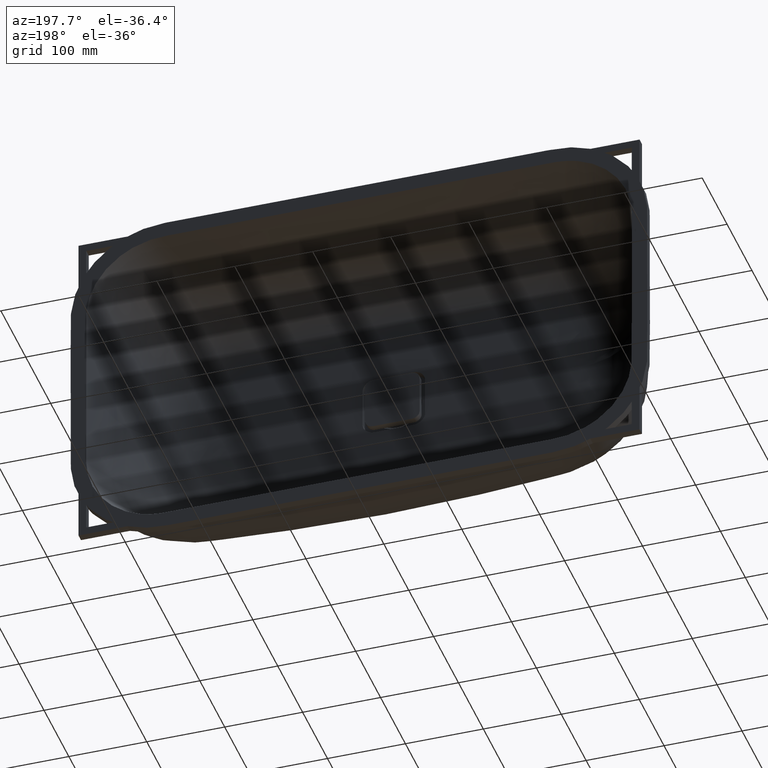
[diagram: clean part render]
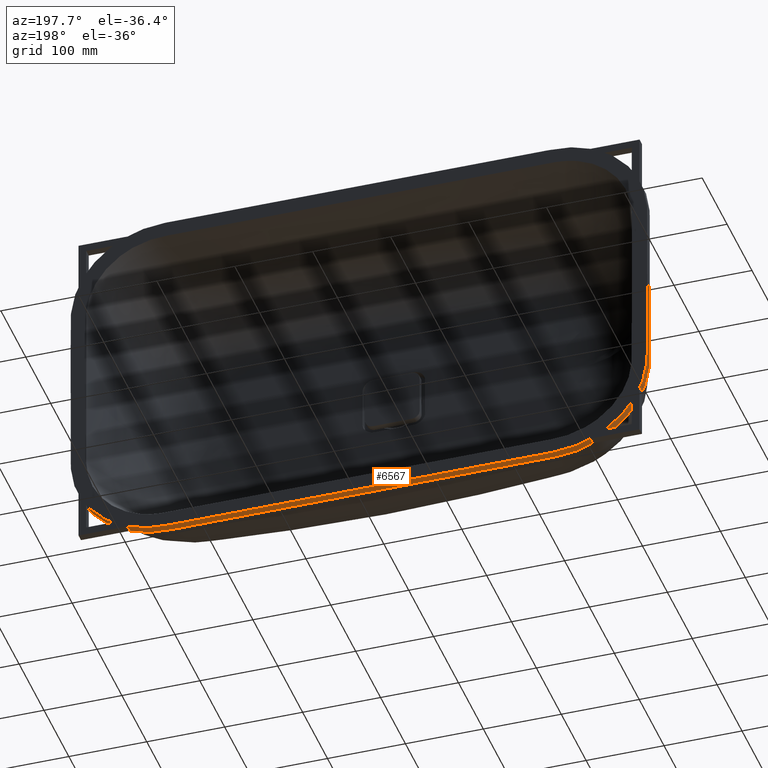
[diagram: same view with one face highlighted and labeled with its STEP entity id]
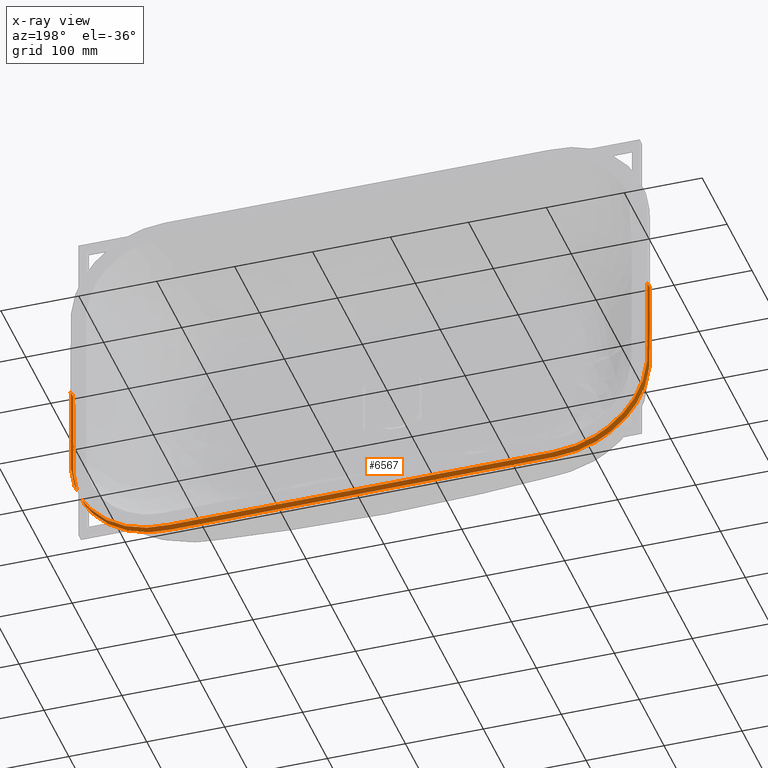
[diagram: x-ray of the same camera — body ghosted, the highlighted face saturated]
A machine part, auxiliary view. The second image highlights one B-rep face of the part: STEP entity #6567.
The next image is the same camera in x-ray: the body ghosted, the highlighted face saturated — about 0% of this face is hidden behind the body in this view.
In plain terms, the highlighted face is a freeform B-spline surface patch.
Its self-contained STEP definition (entity closure, byte-faithful):
#1291 = CARTESIAN_POINT ( 'NONE',  ( -368.5694265312981800, -10.00000000000004100, -128.6755109102220400 ) ) ;
#1517 = CARTESIAN_POINT ( 'NONE',  ( -208.1909280709333500, -7.285838599102589800E-014, -229.9999998948312300 ) ) ;
#1802 = VERTEX_POINT ( 'NONE', #77585 ) ;
#1940 = CARTESIAN_POINT ( 'NONE',  ( -301.3375124675763500, -6.903844104798725300E-014, -218.7966092659687500 ) ) ;
#2067 = CARTESIAN_POINT ( 'NONE',  ( -227.1174660438715600, -10.00000000000007300, -229.9999993046552900 ) ) ;
#2108 = CARTESIAN_POINT ( 'NONE',  ( -370.0000000051377400, -10.00000000000001600, -48.66800487696790600 ) ) ;
#2209 = CARTESIAN_POINT ( 'NONE',  ( -369.9837355351533600, -3.541286203545981500E-014, -112.2304330767916700 ) ) ;
#2477 = CARTESIAN_POINT ( 'NONE',  ( -369.9999999808322300, -2.047541364857557800E-014, -64.89067556598723700 ) ) ;
#2603 = CARTESIAN_POINT ( 'NONE',  ( 227.1174660438736100, -7.285838599102589800E-014, -229.9999993046553200 ) ) ;
#2882 = CARTESIAN_POINT ( 'NONE',  ( 248.4051379303418800, -7.285838599102589800E-014, -230.0000288654555000 ) ) ;
#3075 = CARTESIAN_POINT ( 'NONE',  ( 369.9999973128920500, -10.00000000000003400, -103.4197589538119100 ) ) ;
#3160 = CARTESIAN_POINT ( 'NONE',  ( 219.0059958477482700, -7.285838599102589800E-014, -230.0000001821698300 ) ) ;
#3237 = CARTESIAN_POINT ( 'NONE',  ( 249.2680254088382100, -7.285838599102589800E-014, -229.9999129777619400 ) ) ;
#3354 = CARTESIAN_POINT ( 'NONE',  ( 365.5811764428864300, -10.00000000000004600, -142.7334832046046800 ) ) ;
#3437 = CARTESIAN_POINT ( 'NONE',  ( 194.6720158728535400, -10.00000000000007300, -230.0000000356706700 ) ) ;
#3517 = CARTESIAN_POINT ( 'NONE',  ( 369.9998421130367200, -3.469446951953614200E-014, -109.3485733155321100 ) ) ;
#3636 = CARTESIAN_POINT ( 'NONE',  ( 257.3966411606836000, -10.00000000000007300, -229.7905751632785000 ) ) ;
#3711 = CARTESIAN_POINT ( 'NONE',  ( 369.9999999999998900, 1.698670210949542000E-028, 5.754945131553057500E-013 ) ) ;
#3723 = CARTESIAN_POINT ( 'NONE',  ( 248.4051379303418800, -10.00000000000007300, -230.0000288654555000 ) ) ;
#3809 = CARTESIAN_POINT ( 'NONE',  ( 370.0000523813992600, -10.00000000000003600, -108.4842689358019800 ) ) ;
#3929 = CARTESIAN_POINT ( 'NONE',  ( 208.1909280709354800, -10.00000000000007300, -229.9999998948313200 ) ) ;
#4010 = CARTESIAN_POINT ( 'NONE',  ( 241.3132199435013400, -7.285838599102589800E-014, -229.9999933736824300 ) ) ;
#4097 = CARTESIAN_POINT ( 'NONE',  ( 370.0000000051375700, -10.00000000000001600, -48.66800487696705300 ) ) ;
#4211 = CARTESIAN_POINT ( 'NONE',  ( -156.8191275139739400, -10.00000000000007300, -230.0000000053955500 ) ) ;
#4288 = CARTESIAN_POINT ( 'NONE',  ( 219.0059958477482700, -10.00000000000007300, -230.0000001821698300 ) ) ;
#4305 = FACE_OUTER_BOUND ( 'NONE', #45583, .T. ) ;
#4374 = CARTESIAN_POINT ( 'NONE',  ( 370.0002737202537400, -10.00000000000003600, -109.9847503573792300 ) ) ;
#4489 = CARTESIAN_POINT ( 'NONE',  ( -250.7332074480156300, -10.00000000000007300, -229.9991818206130700 ) ) ;
#4619 = CARTESIAN_POINT ( 'NONE',  ( 370.0000000051375700, -1.535655966924644800E-014, -48.66800487696705300 ) ) ;
#4654 = CARTESIAN_POINT ( 'NONE',  ( 369.9985107857468700, -10.00000000000003600, -110.8386633332168900 ) ) ;
#4771 = CARTESIAN_POINT ( 'NONE',  ( -353.0913786025862500, -10.00000000000005300, -171.9959201989187800 ) ) ;
#4899 = CARTESIAN_POINT ( 'NONE',  ( 369.9985107857468700, -3.497370708823961100E-014, -110.8386633332168900 ) ) ;
#5051 = CARTESIAN_POINT ( 'NONE',  ( -370.0000523813992000, -10.00000000000003600, -108.4842689358032900 ) ) ;
#5182 = CARTESIAN_POINT ( 'NONE',  ( 315.4333475073850700, -6.663998841689067000E-014, -211.1954338164214800 ) ) ;
#5325 = CARTESIAN_POINT ( 'NONE',  ( -370.0000000000000600, -10.00000000000000200, -5.407556139488238300 ) ) ;
#5450 = CARTESIAN_POINT ( 'NONE',  ( 248.4051379303418800, -7.257353524414461300E-014, -230.0000288654555000 ) ) ;
#5540 = CARTESIAN_POINT ( 'NONE',  ( -241.3132199434992300, -7.285838599102589800E-014, -229.9999933736824900 ) ) ;
#5725 = CARTESIAN_POINT ( 'NONE',  ( 64.89067382028906600, -7.257352613598166800E-014, -229.9999999998679200 ) ) ;
#6011 = CARTESIAN_POINT ( 'NONE',  ( -235.2282897767607000, -7.257352695617029800E-014, -230.0000025992095500 ) ) ;
#6109 = CARTESIAN_POINT ( 'NONE',  ( -367.4470581483514600, -4.336808689942017700E-014, -134.9774096808805600 ) ) ;
#6567 = ADVANCED_FACE ( 'NONE', ( #4305 ), #78062, .T. ) ;
#6988 = CARTESIAN_POINT ( 'NONE',  ( -370.0000000000000000, -10.00000000000000000, -3.122502256758252800E-014 ) ) ;
#7425 = CARTESIAN_POINT ( 'NONE',  ( 247.0602996470185200, -7.285838599102589800E-014, -229.9999833621213300 ) ) ;
#7700 = CARTESIAN_POINT ( 'NONE',  ( 208.1909280709354800, -10.00000000000007300, -229.9999998948313200 ) ) ;
#7744 = CARTESIAN_POINT ( 'NONE',  ( -261.4155354305581200, -10.00000000000007300, -229.4878407854313900 ) ) ;
#8017 = CARTESIAN_POINT ( 'NONE',  ( -370.0000000000000000, -10.00000000000000000, -3.122502256758252800E-014 ) ) ;
#8384 = CARTESIAN_POINT ( 'NONE',  ( -330.7752597798499300, -6.293298880005858500E-014, -199.4472116028095700 ) ) ;
#8509 = CARTESIAN_POINT ( 'NONE',  ( 245.3670214626352800, -7.285838599102589800E-014, -230.0000054136311000 ) ) ;
#8606 = EDGE_CURVE ( 'NONE', #57058, #1802, #24869, .T. ) ;
#8655 = CARTESIAN_POINT ( 'NONE',  ( -370.0002737202536900, -3.470426588967556400E-014, -109.9847503573808500 ) ) ;
#8772 = ORIENTED_EDGE ( 'NONE', *, *, #8606, .F. ) ;
#8928 = CARTESIAN_POINT ( 'NONE',  ( -369.9999999986166600, -1.023770658547308900E-014, -32.44533702614214800 ) ) ;
#9330 = CARTESIAN_POINT ( 'NONE',  ( 245.3670214626352800, -10.00000000000007300, -230.0000054136311000 ) ) ;
#9409 = CARTESIAN_POINT ( 'NONE',  ( 370.0002737202537400, -3.469446951953614200E-014, -109.9847503573792300 ) ) ;
#9528 = CARTESIAN_POINT ( 'NONE',  ( 369.9999697595848700, -10.00000000000003400, -107.1399925168115600 ) ) ;
#9691 = CARTESIAN_POINT ( 'NONE',  ( 369.2231796589293300, -10.00000000000004100, -123.9083132636453800 ) ) ;
#9812 = CARTESIAN_POINT ( 'NONE',  ( 358.9368303385662700, -10.00000000000005000, -160.6374205879343400 ) ) ;
#9896 = CARTESIAN_POINT ( 'NONE',  ( -227.1174660438715600, -7.285838599102589800E-014, -229.9999993046552900 ) ) ;
#9983 = CARTESIAN_POINT ( 'NONE',  ( 370.0000523813992600, -3.469446951953614200E-014, -108.4842689358019800 ) ) ;
#10103 = CARTESIAN_POINT ( 'NONE',  ( 252.1423367717200400, -10.00000000000007300, -229.9854392652010800 ) ) ;
#10269 = CARTESIAN_POINT ( 'NONE',  ( 370.0000000003951200, -10.00000000000000500, -16.22266841846388300 ) ) ;
#10383 = CARTESIAN_POINT ( 'NONE',  ( 178.4493543980402700, -10.00000000000007300, -229.9999999906549700 ) ) ;
#10467 = CARTESIAN_POINT ( 'NONE',  ( 241.3132199435013400, -10.00000000000007300, -229.9999933736824300 ) ) ;
#10554 = CARTESIAN_POINT ( 'NONE',  ( 257.3966411606836000, -10.00000000000007300, -229.7905751632785000 ) ) ;
#10667 = CARTESIAN_POINT ( 'NONE',  ( -194.6720158728513800, -10.00000000000007300, -230.0000000356705800 ) ) ;
#10836 = CARTESIAN_POINT ( 'NONE',  ( 358.9368303385662700, -5.030698080332740600E-014, -160.6374205879343400 ) ) ;
#10955 = CARTESIAN_POINT ( 'NONE',  ( -254.1704036494605200, -10.00000000000007300, -229.9357047427392900 ) ) ;
#11088 = CARTESIAN_POINT ( 'NONE',  ( 370.0000000564162400, -2.474112251184421700E-014, -78.40955897690069800 ) ) ;
#11120 = CARTESIAN_POINT ( 'NONE',  ( 370.0000000051375700, -1.561251128379126400E-014, -48.66800487696705300 ) ) ;
#11236 = CARTESIAN_POINT ( 'NONE',  ( -362.6162986912609100, -10.00000000000004800, -151.8170165020855800 ) ) ;
#11353 = CARTESIAN_POINT ( 'NONE',  ( 369.9117756355505500, -3.631236465309494800E-014, -115.0811365367326000 ) ) ;
#11505 = CARTESIAN_POINT ( 'NONE',  ( -370.0000102567383900, -10.00000000000003400, -105.4463998884248800 ) ) ;
#11632 = CARTESIAN_POINT ( 'NONE',  ( 289.4804807030358800, -7.050856827840051200E-014, -223.4557360990965000 ) ) ;
#11909 = CARTESIAN_POINT ( 'NONE',  ( 245.3670214626352800, -7.257352784422465600E-014, -230.0000054136311000 ) ) ;
#11916 = ORIENTED_EDGE ( 'NONE', *, *, #77393, .F. ) ;
#12007 = CARTESIAN_POINT ( 'NONE',  ( -241.3132199434992300, -10.00000000000007300, -229.9999933736824900 ) ) ;
#12195 = CARTESIAN_POINT ( 'NONE',  ( 1.292368989602721300E-012, -7.257352613601743900E-014, -229.9999999999812700 ) ) ;
#12284 = CARTESIAN_POINT ( 'NONE',  ( -369.6864430236646500, -3.816391647148975600E-014, -119.1001921969901200 ) ) ;
#12461 = CARTESIAN_POINT ( 'NONE',  ( -245.3670214626334000, -7.257352784422459200E-014, -230.0000054136309600 ) ) ;
#12659 = ORIENTED_EDGE ( 'NONE', *, *, #24013, .T. ) ;
#12839 = CARTESIAN_POINT ( 'NONE',  ( -369.9999994738987000, -3.122502256758252800E-014, -97.33605917397697700 ) ) ;
#13377 = CARTESIAN_POINT ( 'NONE',  ( -249.2680254088362800, -10.00000000000007300, -229.9999129777618200 ) ) ;
#13659 = VECTOR ( 'NONE', #45424, 1000.000000000000000 ) ;
#14461 = CARTESIAN_POINT ( 'NONE',  ( -315.4333475073833600, -10.00000000000006600, -211.1954338164225900 ) ) ;
#14693 = CARTESIAN_POINT ( 'NONE',  ( 97.33601062392219200, -10.00000000000007300, -230.0000000004915800 ) ) ;
#14734 = CARTESIAN_POINT ( 'NONE',  ( -367.4470581483514600, -10.00000000000004400, -134.9774096808805600 ) ) ;
#14842 = CARTESIAN_POINT ( 'NONE',  ( -353.0913786025862500, -5.427108873845919800E-014, -171.9959201989187800 ) ) ;
#14968 = CARTESIAN_POINT ( 'NONE',  ( -219.0059958477463300, -10.00000000000007300, -230.0000001821698000 ) ) ;
#15110 = CARTESIAN_POINT ( 'NONE',  ( -370.0000523813992000, -3.423080837808653200E-014, -108.4842689358032900 ) ) ;
#15234 = CARTESIAN_POINT ( 'NONE',  ( -208.1909280709333500, -10.00000000000007300, -229.9999998948312300 ) ) ;
#15379 = CARTESIAN_POINT ( 'NONE',  ( -370.0000000000000600, -1.706284420961568400E-015, -5.407556139488241000 ) ) ;
#15554 = VECTOR ( 'NONE', #23734, 1000.000000000000000 ) ;
#15699 = CARTESIAN_POINT ( 'NONE',  ( 370.0000000003951200, -10.00000000000000500, -16.22266841846388300 ) ) ;
#15863 = CARTESIAN_POINT ( 'NONE',  ( 370.0000000003951200, -5.204170427930421300E-015, -16.22266841846388600 ) ) ;
#15983 = CARTESIAN_POINT ( 'NONE',  ( 369.9998421130367200, -10.00000000000003600, -109.3485733155321100 ) ) ;
#16142 = CARTESIAN_POINT ( 'NONE',  ( 369.9999999986165400, -10.00000000000001100, -32.44533702614127400 ) ) ;
#16263 = CARTESIAN_POINT ( 'NONE',  ( 344.0916251262462400, -10.00000000000005900, -185.3011088497730400 ) ) ;
#16430 = CARTESIAN_POINT ( 'NONE',  ( 249.9071089342750200, -7.285838599102589800E-014, -230.0001508669375900 ) ) ;
#16547 = CARTESIAN_POINT ( 'NONE',  ( 249.9071089342750200, -10.00000000000007300, -230.0001508669375900 ) ) ;
#16629 = CARTESIAN_POINT ( 'NONE',  ( -219.0059958477463300, -7.285838599102589800E-014, -230.0000001821698000 ) ) ;
#16716 = CARTESIAN_POINT ( 'NONE',  ( 369.6864430236647100, -10.00000000000003900, -119.1001921969885900 ) ) ;
#16838 = CARTESIAN_POINT ( 'NONE',  ( 129.7813478840299100, -10.00000000000007300, -229.9999999981669700 ) ) ;
#17008 = CARTESIAN_POINT ( 'NONE',  ( 369.9999999986165400, -1.040834085586084300E-014, -32.44533702614127400 ) ) ;
#17121 = CARTESIAN_POINT ( 'NONE',  ( -219.0059958477463300, -10.00000000000007300, -230.0000001821698000 ) ) ;
#17288 = CARTESIAN_POINT ( 'NONE',  ( 370.0000015512931700, -3.122502256758252800E-014, -100.7155903604947400 ) ) ;
#17399 = CARTESIAN_POINT ( 'NONE',  ( -261.4155354305581200, -10.00000000000007300, -229.4878407854313900 ) ) ;
#17525 = CARTESIAN_POINT ( 'NONE',  ( 370.0000001376323600, -2.943340231741225900E-014, -93.28033090629377000 ) ) ;
#17558 = CARTESIAN_POINT ( 'NONE',  ( 370.0000102567382800, -3.295974604355933500E-014, -105.4463998884235600 ) ) ;
#17673 = CARTESIAN_POINT ( 'NONE',  ( -367.4470581483514600, -10.00000000000004400, -134.9774096808805600 ) ) ;
#17800 = CARTESIAN_POINT ( 'NONE',  ( 369.2231796589293300, -3.909766613525973400E-014, -123.9083132636453800 ) ) ;
#17947 = CARTESIAN_POINT ( 'NONE',  ( -370.0000015512933900, -10.00000000000003200, -100.7155903604959900 ) ) ;
#18079 = CARTESIAN_POINT ( 'NONE',  ( 272.5347273984087300, -7.192358536704882800E-014, -227.9402078853939000 ) ) ;
#18171 = CARTESIAN_POINT ( 'NONE',  ( -254.1704036494605200, -7.285838599102589800E-014, -229.9357047427392900 ) ) ;
#18345 = CARTESIAN_POINT ( 'NONE',  ( 235.2282897767625200, -7.257352695617036100E-014, -230.0000025992096700 ) ) ;
#18440 = CARTESIAN_POINT ( 'NONE',  ( -369.9999697595850400, -3.295974604355933500E-014, -107.1399925168129500 ) ) ;
#18621 = CARTESIAN_POINT ( 'NONE',  ( -64.89067382028653700, -7.257352613598166800E-014, -229.9999999998679000 ) ) ;
#18906 = CARTESIAN_POINT ( 'NONE',  ( -248.4051379303399800, -7.257353524414460100E-014, -230.0000288654555300 ) ) ;
#19003 = CARTESIAN_POINT ( 'NONE',  ( -370.0000001376325800, -2.949029909160572100E-014, -93.28033090629502100 ) ) ;
#20084 = CARTESIAN_POINT ( 'NONE',  ( -315.4333475073833600, -6.591949208711867000E-014, -211.1954338164225900 ) ) ;
#20623 = CARTESIAN_POINT ( 'NONE',  ( -245.3670214626334000, -7.285838599102589800E-014, -230.0000054136309600 ) ) ;
#21267 = CARTESIAN_POINT ( 'NONE',  ( -362.6162986912609100, -4.790389658698779200E-014, -151.8170165020855800 ) ) ;
#21528 = CARTESIAN_POINT ( 'NONE',  ( -370.0000102567383900, -3.327224807935725400E-014, -105.4463998884248800 ) ) ;
#21653 = CARTESIAN_POINT ( 'NONE',  ( -178.4493543980380000, -10.00000000000007300, -229.9999999906548000 ) ) ;
#21923 = CARTESIAN_POINT ( 'NONE',  ( -194.6720158728513800, -7.285838599102589800E-014, -230.0000000356705800 ) ) ;
#22123 = CARTESIAN_POINT ( 'NONE',  ( 370.0000000051375700, -10.00000000000001600, -48.66800487696705300 ) ) ;
#22206 = CARTESIAN_POINT ( 'NONE',  ( -178.4493543980380000, -7.285838599102589800E-014, -229.9999999906548000 ) ) ;
#22286 = CARTESIAN_POINT ( 'NONE',  ( 370.0000001376323600, -2.949029909160572100E-014, -93.28033090629377000 ) ) ;
#22406 = CARTESIAN_POINT ( 'NONE',  ( 369.9985107857468700, -10.00000000000003600, -110.8386633332168900 ) ) ;
#22488 = CARTESIAN_POINT ( 'NONE',  ( 129.7813478840299100, -7.285838599102589800E-014, -229.9999999981669700 ) ) ;
#22564 = CARTESIAN_POINT ( 'NONE',  ( 370.0000015512931700, -10.00000000000003200, -100.7155903604947400 ) ) ;
#22688 = CARTESIAN_POINT ( 'NONE',  ( 315.4333475073850700, -10.00000000000006600, -211.1954338164214800 ) ) ;
#22855 = CARTESIAN_POINT ( 'NONE',  ( 362.6162986912615300, -4.857225732735059900E-014, -151.8170165020840700 ) ) ;
#22978 = CARTESIAN_POINT ( 'NONE',  ( 248.4051379303418800, -10.00000000000007300, -230.0000288654555000 ) ) ;
#23063 = CARTESIAN_POINT ( 'NONE',  ( -194.6720158728513800, -10.00000000000007300, -230.0000000356705800 ) ) ;
#23148 = CARTESIAN_POINT ( 'NONE',  ( 369.9999994738987000, -3.122502256758252800E-014, -97.33605917397574100 ) ) ;
#23266 = CARTESIAN_POINT ( 'NONE',  ( 64.89067382028906600, -10.00000000000007300, -229.9999999998679200 ) ) ;
#23344 = CARTESIAN_POINT ( 'NONE',  ( 97.33601062392219200, -7.285838599102589800E-014, -230.0000000004915800 ) ) ;
#23429 = CARTESIAN_POINT ( 'NONE',  ( 369.9999973128920500, -10.00000000000003400, -103.4197589538119100 ) ) ;
#23541 = CARTESIAN_POINT ( 'NONE',  ( -235.2282897767607000, -10.00000000000007300, -230.0000025992095500 ) ) ;
#23622 = CARTESIAN_POINT ( 'NONE',  ( 129.7813478840299100, -10.00000000000007300, -229.9999999981669700 ) ) ;
#23676 = CARTESIAN_POINT ( 'NONE',  ( 369.9999999999998900, 1.698670210949542000E-028, 5.754945131553057500E-013 ) ) ;
#23711 = CARTESIAN_POINT ( 'NONE',  ( 369.9999994738987000, -10.00000000000003200, -97.33605917397574100 ) ) ;
#23734 = DIRECTION ( 'NONE',  ( 3.108277162125713300E-032, 1.000000000000000000, -3.155370701566232400E-016 ) ) ;
#23832 = CARTESIAN_POINT ( 'NONE',  ( -272.5347273984065700, -10.00000000000007100, -227.9402078853945000 ) ) ;
#23963 = CARTESIAN_POINT ( 'NONE',  ( 370.0000015512931700, -3.177950230144517000E-014, -100.7155903604947400 ) ) ;
#23996 = CARTESIAN_POINT ( 'NONE',  ( 370.0000102567382800, -10.00000000000003400, -105.4463998884235600 ) ) ;
#24013 = EDGE_CURVE ( 'NONE', #68062, #30836, #81551, .T. ) ;
#24114 = CARTESIAN_POINT ( 'NONE',  ( -369.2231796589290400, -10.00000000000004100, -123.9083132636469600 ) ) ;
#24239 = CARTESIAN_POINT ( 'NONE',  ( 367.4470581483518000, -4.259037638803484200E-014, -134.9774096808791300 ) ) ;
#24384 = CARTESIAN_POINT ( 'NONE',  ( -370.0000001376325800, -10.00000000000003000, -93.28033090629502100 ) ) ;
#24510 = CARTESIAN_POINT ( 'NONE',  ( 261.4155354305604500, -7.241192091800457800E-014, -229.4878407854311000 ) ) ;
#24782 = CARTESIAN_POINT ( 'NONE',  ( 219.0059958477482700, -7.257352619350468600E-014, -230.0000001821698300 ) ) ;
#24869 = B_SPLINE_CURVE_WITH_KNOTS ( 'NONE', 3,
 ( #23676, #36613, #81372, #43074, #4619, #49499, #11088, #55939, #17525, #62368, #23963, #68781, #30421, #75221, #36893, #81646, #43346, #4899, #49777, #11353, #56219, #17800, #62642, #24239, #69061, #30697, #75492, #37170, #81928, #43617, #5182, #50055, #11632, #56491, #18079, #62917, #24510, #69330, #30981, #75764, #37445, #82202, #43896, #5450, #50327, #11909, #56768, #18345, #63193, #24782, #69608, #31255, #76049, #37715, #82478, #44173, #5725, #50599, #12195, #57049, #18621, #63463, #25063, #69883, #31531, #76324, #38000, #82750, #44452, #6011, #50879, #12461, #57327, #18906, #63739, #25336, #70165, #31812, #76604, #26774, #27453, #72261, #33915, #78690, #40388, #1940, #46816, #8384, #53251, #14842, #59678, #21267, #66096, #27722, #72525, #34187, #78962, #40654, #2209, #47092, #8655, #53516, #15110, #59953, #21528, #66365, #28000, #72796, #34457, #79234, #40933, #2477, #47365, #8928, #53790, #15379, #60224 ),
 .UNSPECIFIED., .F., .F.,
 ( 4, 1, 1, 1, 1, 1, 1, 1, 1, 1, 1, 1, 1, 1, 1, 1, 1, 1, 1, 1, 1, 1, 1, 1, 1, 1, 1, 1, 1, 1, 1, 1, 1, 1, 1, 1, 1, 1, 1, 1, 1, 1, 1, 1, 1, 1, 1, 1, 1, 1, 1, 1, 1, 1, 1, 1, 1, 1, 1, 1, 1, 1, 1, 1, 1, 1, 1, 1, 1, 1, 1, 1, 1, 1, 1, 1, 1, 1, 1, 1, 1, 1, 1, 1, 1, 1, 1, 1, 1, 1, 1, 1, 1, 1, 1, 1, 1, 1, 1, 1, 1, 1, 1, 1, 1, 1, 1, 1, 1, 1, 1, 1, 1, 1, 4 ),
 ( 0.5000000000000000000, 0.5078125000000000000, 0.5156250000000000000, 0.5234375000000000000, 0.5312500000000000000, 0.5390625000000000000, 0.5429687500000000000, 0.5449218750000000000, 0.5468750000000000000, 0.5488281250000000000, 0.5498046875000000000, 0.5507812500000000000, 0.5517578125000000000, 0.5522460937500000000, 0.5527343750000000000, 0.5529785156250000000, 0.5532226562500000000, 0.5537109375000000000, 0.5546875000000000000, 0.5566406250000000000, 0.5585937500000000000, 0.5605468750000000000, 0.5625000000000000000, 0.5664062500000000000, 0.5703125000000000000, 0.5742187500000000000, 0.5781250000000000000, 0.5859375000000000000, 0.5937500000000000000, 0.6015625000000000000, 0.6093750000000000000, 0.6132812500000000000, 0.6171875000000000000, 0.6210937500000000000, 0.6230468750000000000, 0.6250000000000000000, 0.6269531250000000000, 0.6279296875000000000, 0.6289062500000000000, 0.6293945312500000000, 0.6296386718750000000, 0.6298828125000000000, 0.6303710937500000000, 0.6308593750000000000, 0.6318359375000000000, 0.6328125000000000000, 0.6367187500000000000, 0.6406250000000000000, 0.6445312500000000000, 0.6484375000000000000, 0.6562500000000000000, 0.6640625000000000000, 0.6718750000000000000, 0.6875000000000000000, 0.7031250000000000000, 0.7187500000000000000, 0.7343750000000000000, 0.7500000000000000000, 0.7656250000000000000, 0.7812500000000000000, 0.7968750000000000000, 0.8125000000000000000, 0.8281250000000000000, 0.8359375000000000000, 0.8437500000000000000, 0.8515625000000000000, 0.8554687500000000000, 0.8593750000000000000, 0.8632812500000000000, 0.8671875000000000000, 0.8681640625000000000, 0.8691406250000000000, 0.8696289062500000000, 0.8701171875000000000, 0.8703613281250000000, 0.8706054687500000000, 0.8710937500000000000, 0.8720703125000000000, 0.8730468750000000000, 0.8750000000000000000, 0.8769531250000000000, 0.8789062500000000000, 0.8828125000000000000, 0.8867187500000000000, 0.8906250000000000000, 0.8984375000000000000, 0.9062500000000000000, 0.9140625000000000000, 0.9218750000000000000, 0.9257812500000000000, 0.9296875000000000000, 0.9335937500000000000, 0.9375000000000000000, 0.9394531250000000000, 0.9414062500000000000, 0.9433593750000000000, 0.9453125000000000000, 0.9462890625000000000, 0.9467773437500000000, 0.9470214843750000000, 0.9472656250000000000, 0.9477539062500000000, 0.9482421875000000000, 0.9492187500000000000, 0.9501953125000000000, 0.9511718750000000000, 0.9531250000000000000, 0.9550781250000000000, 0.9570312500000000000, 0.9609375000000000000, 0.9687500000000000000, 0.9765625000000000000, 0.9843750000000000000, 0.9921875000000000000, 1.000000000000000000 ),
 .UNSPECIFIED. ) ;
#24877 = CARTESIAN_POINT ( 'NONE',  ( -257.3966411606812700, -10.00000000000007300, -229.7905751632785000 ) ) ;
#24950 = CARTESIAN_POINT ( 'NONE',  ( -370.0000000000000000, -10.00000000000000000, -3.122502256758252800E-014 ) ) ;
#25063 = CARTESIAN_POINT ( 'NONE',  ( -129.7813478840275800, -7.257352613544497800E-014, -229.9999999981670300 ) ) ;
#25157 = CARTESIAN_POINT ( 'NONE',  ( -257.3966411606812700, -7.285838599102589800E-014, -229.7905751632785000 ) ) ;
#25336 = CARTESIAN_POINT ( 'NONE',  ( -249.9071089342731400, -7.257357374013480400E-014, -230.0001508669375600 ) ) ;
#25428 = CARTESIAN_POINT ( 'NONE',  ( -369.9999973128921600, -10.00000000000003400, -103.4197589538131600 ) ) ;
#25701 = CARTESIAN_POINT ( 'NONE',  ( -289.4804807030339500, -10.00000000000007100, -223.4557360990971500 ) ) ;
#25980 = CARTESIAN_POINT ( 'NONE',  ( -370.0000000051377400, -1.561251128379126400E-014, -48.66800487696790600 ) ) ;
#26484 = CARTESIAN_POINT ( 'NONE',  ( -156.8191275139739400, -10.00000000000007300, -230.0000000053955500 ) ) ;
#26526 = CARTESIAN_POINT ( 'NONE',  ( -247.0602996470166200, -10.00000000000007300, -229.9999833621212400 ) ) ;
#26762 = CARTESIAN_POINT ( 'NONE',  ( -156.8191275139739400, -7.285838599102589800E-014, -230.0000000053955500 ) ) ;
#26774 = CARTESIAN_POINT ( 'NONE',  ( -257.3966411606812700, -7.250744483662619800E-014, -229.7905751632785000 ) ) ;
#26806 = CARTESIAN_POINT ( 'NONE',  ( -252.1423367717178800, -7.285838599102589800E-014, -229.9854392652011400 ) ) ;
#27039 = CARTESIAN_POINT ( 'NONE',  ( -129.7813478840275800, -10.00000000000007300, -229.9999999981670300 ) ) ;
#27083 = CARTESIAN_POINT ( 'NONE',  ( -369.2231796589290400, -10.00000000000004100, -123.9083132636469600 ) ) ;
#27309 = CARTESIAN_POINT ( 'NONE',  ( -97.33601062391973400, -7.285838599102589800E-014, -230.0000000004914400 ) ) ;
#27453 = CARTESIAN_POINT ( 'NONE',  ( -261.4155354305581200, -7.241192091800464200E-014, -229.4878407854313900 ) ) ;
#27580 = CARTESIAN_POINT ( 'NONE',  ( -64.89067382028653700, -7.285838599102589800E-014, -229.9999999998679000 ) ) ;
#27617 = CARTESIAN_POINT ( 'NONE',  ( -369.9837355351533600, -3.469446951953614200E-014, -112.2304330767916700 ) ) ;
#27722 = CARTESIAN_POINT ( 'NONE',  ( -367.4470581483514600, -4.259037638803527700E-014, -134.9774096808805600 ) ) ;
#27850 = CARTESIAN_POINT ( 'NONE',  ( -129.7813478840275800, -7.285838599102589800E-014, -229.9999999981670300 ) ) ;
#27890 = CARTESIAN_POINT ( 'NONE',  ( -370.0000000003953500, -10.00000000000000500, -16.22266841846452900 ) ) ;
#28000 = CARTESIAN_POINT ( 'NONE',  ( -370.0000015512933900, -3.177950230144553600E-014, -100.7155903604959900 ) ) ;
#28390 = CARTESIAN_POINT ( 'NONE',  ( -235.2282897767607000, -10.00000000000007300, -230.0000025992095500 ) ) ;
#28590 = CARTESIAN_POINT ( 'NONE',  ( 370.0000000564162400, -10.00000000000002500, -78.40955897690069800 ) ) ;
#28672 = CARTESIAN_POINT ( 'NONE',  ( 1.292368989602721300E-012, -7.285838599102589800E-014, -229.9999999999812700 ) ) ;
#28871 = CARTESIAN_POINT ( 'NONE',  ( 369.9117756355505500, -10.00000000000003700, -115.0811365367326000 ) ) ;
#29039 = CARTESIAN_POINT ( 'NONE',  ( 368.5694265312986900, -3.989863994746656300E-014, -128.6755109102204000 ) ) ;
#29159 = CARTESIAN_POINT ( 'NONE',  ( 289.4804807030358800, -10.00000000000007100, -223.4557360990965000 ) ) ;
#29244 = CARTESIAN_POINT ( 'NONE',  ( 178.4493543980402700, -10.00000000000007300, -229.9999999906549700 ) ) ;
#29326 = CARTESIAN_POINT ( 'NONE',  ( 257.3966411606836000, -7.285838599102589800E-014, -229.7905751632785000 ) ) ;
#29445 = CARTESIAN_POINT ( 'NONE',  ( 245.3670214626352800, -10.00000000000007300, -230.0000054136311000 ) ) ;
#29608 = CARTESIAN_POINT ( 'NONE',  ( 368.5694265312986900, -10.00000000000004100, -128.6755109102204000 ) ) ;
#29727 = CARTESIAN_POINT ( 'NONE',  ( 1.292368989602721300E-012, -10.00000000000007300, -229.9999999999812700 ) ) ;
#29897 = CARTESIAN_POINT ( 'NONE',  ( 369.2231796589293300, -3.989863994746656300E-014, -123.9083132636453800 ) ) ;
#30015 = CARTESIAN_POINT ( 'NONE',  ( -245.3670214626334000, -10.00000000000007300, -230.0000054136309600 ) ) ;
#30094 = CARTESIAN_POINT ( 'NONE',  ( -97.33601062391973400, -10.00000000000007300, -230.0000000004914400 ) ) ;
#30183 = CARTESIAN_POINT ( 'NONE',  ( 369.6864430236647100, -3.816391647148975600E-014, -119.1001921969885900 ) ) ;
#30301 = CARTESIAN_POINT ( 'NONE',  ( -289.4804807030339500, -10.00000000000007100, -223.4557360990971500 ) ) ;
#30421 = CARTESIAN_POINT ( 'NONE',  ( 370.0000102567382800, -3.327224807935686300E-014, -105.4463998884235600 ) ) ;
#30567 = CARTESIAN_POINT ( 'NONE',  ( -369.9117756355506100, -10.00000000000003700, -115.0811365367342300 ) ) ;
#30697 = CARTESIAN_POINT ( 'NONE',  ( 362.6162986912615300, -4.790389658698733700E-014, -151.8170165020840700 ) ) ;
#30794 = CARTESIAN_POINT ( 'NONE',  ( -365.5811764428859800, -4.510281037539698400E-014, -142.7334832046062200 ) ) ;
#30836 = VERTEX_POINT ( 'NONE', #24950 ) ;
#30851 = CARTESIAN_POINT ( 'NONE',  ( -370.0000000564165800, -10.00000000000002500, -78.40955897690180600 ) ) ;
#30981 = CARTESIAN_POINT ( 'NONE',  ( 254.1704036494629100, -7.255323859892232300E-014, -229.9357047427392300 ) ) ;
#31075 = CARTESIAN_POINT ( 'NONE',  ( -266.2030324053478700, -7.285838599102589800E-014, -228.9327285942426300 ) ) ;
#31255 = CARTESIAN_POINT ( 'NONE',  ( 194.6720158728535400, -7.257352614727876200E-014, -230.0000000356706700 ) ) ;
#31349 = CARTESIAN_POINT ( 'NONE',  ( -353.0913786025862500, -10.00000000000005300, -171.9959201989187800 ) ) ;
#31531 = CARTESIAN_POINT ( 'NONE',  ( -178.4493543980380000, -7.257352613307458300E-014, -229.9999999906548000 ) ) ;
#31623 = CARTESIAN_POINT ( 'NONE',  ( -272.5347273984065700, -10.00000000000007100, -227.9402078853945000 ) ) ;
#31812 = CARTESIAN_POINT ( 'NONE',  ( -252.1423367717178800, -7.256893168442556300E-014, -229.9854392652011400 ) ) ;
#32459 = CARTESIAN_POINT ( 'NONE',  ( -369.9999999215503400, -10.00000000000002800, -87.87279466569546600 ) ) ;
#32730 = CARTESIAN_POINT ( 'NONE',  ( -369.9999973128921600, -3.295974604355933500E-014, -103.4197589538131600 ) ) ;
#33010 = CARTESIAN_POINT ( 'NONE',  ( -369.9985107857469300, -3.469446951953614200E-014, -110.8386633332185300 ) ) ;
#33236 = CARTESIAN_POINT ( 'NONE',  ( 1.292368989602721300E-012, -10.00000000000007300, -229.9999999999812700 ) ) ;
#33502 = CARTESIAN_POINT ( 'NONE',  ( -32.44533689492683200, -10.00000000000007300, -230.0000000000380300 ) ) ;
#33769 = CARTESIAN_POINT ( 'NONE',  ( -32.44533689492683200, -7.285838599102589800E-014, -230.0000000000380300 ) ) ;
#33915 = CARTESIAN_POINT ( 'NONE',  ( -272.5347273984065700, -7.192358536704899200E-014, -227.9402078853945000 ) ) ;
#34187 = CARTESIAN_POINT ( 'NONE',  ( -369.2231796589290400, -3.909766613526020700E-014, -123.9083132636469600 ) ) ;
#34314 = CARTESIAN_POINT ( 'NONE',  ( 32.44533689492934800, -7.285838599102589800E-014, -230.0000000000380300 ) ) ;
#34457 = CARTESIAN_POINT ( 'NONE',  ( -370.0000001376325800, -2.943340231741263100E-014, -93.28033090629502100 ) ) ;
#34576 = CARTESIAN_POINT ( 'NONE',  ( 247.0602996470185200, -10.00000000000007300, -229.9999833621213300 ) ) ;
#34857 = CARTESIAN_POINT ( 'NONE',  ( -64.89067382028653700, -10.00000000000007300, -229.9999999998679000 ) ) ;
#35063 = CARTESIAN_POINT ( 'NONE',  ( 370.0000001376323600, -10.00000000000003000, -93.28033090629377000 ) ) ;
#35146 = CARTESIAN_POINT ( 'NONE',  ( 32.44533689492934800, -10.00000000000007300, -230.0000000000380300 ) ) ;
#35225 = CARTESIAN_POINT ( 'NONE',  ( 369.9999697595848700, -10.00000000000003400, -107.1399925168115600 ) ) ;
#35347 = CARTESIAN_POINT ( 'NONE',  ( 369.2231796589293300, -10.00000000000004100, -123.9083132636453800 ) ) ;
#35428 = CARTESIAN_POINT ( 'NONE',  ( 64.89067382028906600, -10.00000000000007300, -229.9999999998679200 ) ) ;
#35509 = CARTESIAN_POINT ( 'NONE',  ( 367.4470581483518000, -10.00000000000004400, -134.9774096808791300 ) ) ;
#35627 = CARTESIAN_POINT ( 'NONE',  ( 272.5347273984087300, -10.00000000000007100, -227.9402078853939000 ) ) ;
#35710 = CARTESIAN_POINT ( 'NONE',  ( 156.8191275139761800, -10.00000000000007300, -230.0000000053956900 ) ) ;
#35796 = CARTESIAN_POINT ( 'NONE',  ( 330.7752597798513500, -10.00000000000006200, -199.4472116028083500 ) ) ;
#35917 = CARTESIAN_POINT ( 'NONE',  ( 235.2282897767625200, -10.00000000000007300, -230.0000025992096700 ) ) ;
#36003 = CARTESIAN_POINT ( 'NONE',  ( 64.89067382028906600, -7.285838599102589800E-014, -229.9999999998679200 ) ) ;
#36091 = CARTESIAN_POINT ( 'NONE',  ( 254.1704036494629100, -10.00000000000007300, -229.9357047427392300 ) ) ;
#36213 = CARTESIAN_POINT ( 'NONE',  ( -64.89067382028653700, -10.00000000000007300, -229.9999999998679000 ) ) ;
#36290 = CARTESIAN_POINT ( 'NONE',  ( 156.8191275139761800, -7.285838599102589800E-014, -230.0000000053956900 ) ) ;
#36374 = CARTESIAN_POINT ( 'NONE',  ( 344.0916251262462400, -5.898059818321144100E-014, -185.3011088497730400 ) ) ;
#36484 = CARTESIAN_POINT ( 'NONE',  ( -248.4051379303399800, -10.00000000000007300, -230.0000288654555300 ) ) ;
#36613 = CARTESIAN_POINT ( 'NONE',  ( 369.9999999999998900, -1.706284420961386100E-015, -5.407556139487590000 ) ) ;
#36648 = CARTESIAN_POINT ( 'NONE',  ( 254.1704036494629100, -7.285838599102589800E-014, -229.9357047427392300 ) ) ;
#36766 = CARTESIAN_POINT ( 'NONE',  ( -315.4333475073833600, -10.00000000000006600, -211.1954338164225900 ) ) ;
#36893 = CARTESIAN_POINT ( 'NONE',  ( 370.0000523813992600, -3.423080837808614100E-014, -108.4842689358019800 ) ) ;
#37045 = CARTESIAN_POINT ( 'NONE',  ( -369.9985107857469300, -10.00000000000003600, -110.8386633332185300 ) ) ;
#37170 = CARTESIAN_POINT ( 'NONE',  ( 353.0913786025872100, -5.427108873845876300E-014, -171.9959201989173300 ) ) ;
#37319 = CARTESIAN_POINT ( 'NONE',  ( -370.0000000051377400, -10.00000000000001600, -48.66800487696790600 ) ) ;
#37445 = CARTESIAN_POINT ( 'NONE',  ( 250.7332074480180200, -7.257326797009674900E-014, -229.9991818206131000 ) ) ;
#37537 = CARTESIAN_POINT ( 'NONE',  ( -358.9368303385655300, -10.00000000000005000, -160.6374205879357400 ) ) ;
#37715 = CARTESIAN_POINT ( 'NONE',  ( 156.8191275139761800, -7.257352613772588400E-014, -230.0000000053956900 ) ) ;
#37814 = CARTESIAN_POINT ( 'NONE',  ( -369.2231796589290400, -3.989863994746656300E-014, -123.9083132636469600 ) ) ;
#38000 = CARTESIAN_POINT ( 'NONE',  ( -208.1909280709333500, -7.257352610283869400E-014, -229.9999998948312300 ) ) ;
#38093 = CARTESIAN_POINT ( 'NONE',  ( -369.9999999808322300, -10.00000000000002100, -64.89067556598723700 ) ) ;
#38913 = CARTESIAN_POINT ( 'NONE',  ( -369.9999999215503400, -2.775557561562891400E-014, -87.87279466569546600 ) ) ;
#39189 = CARTESIAN_POINT ( 'NONE',  ( -370.0000000003953500, -5.204170427930421300E-015, -16.22266841846453300 ) ) ;
#39422 = CARTESIAN_POINT ( 'NONE',  ( 235.2282897767625200, -7.285838599102589800E-014, -230.0000025992096700 ) ) ;
#39464 = CARTESIAN_POINT ( 'NONE',  ( -369.9999697595850400, -10.00000000000003400, -107.1399925168129500 ) ) ;
#39689 = CARTESIAN_POINT ( 'NONE',  ( 235.2282897767625200, -10.00000000000007300, -230.0000025992096700 ) ) ;
#39731 = CARTESIAN_POINT ( 'NONE',  ( -370.0000000564165800, -2.428612866367529900E-014, -78.40955897690180600 ) ) ;
#39970 = CARTESIAN_POINT ( 'NONE',  ( 178.4493543980402700, -7.285838599102589800E-014, -229.9999999906549700 ) ) ;
#40012 = CARTESIAN_POINT ( 'NONE',  ( -370.0000000000000600, -10.00000000000000200, -5.407556139488238300 ) ) ;
#40241 = CARTESIAN_POINT ( 'NONE',  ( 208.1909280709354800, -7.285838599102589800E-014, -229.9999998948313200 ) ) ;
#40282 = CARTESIAN_POINT ( 'NONE',  ( -249.9071089342731400, -7.285838599102589800E-014, -230.0001508669375600 ) ) ;
#40388 = CARTESIAN_POINT ( 'NONE',  ( -289.4804807030339500, -7.050856827840068800E-014, -223.4557360990971500 ) ) ;
#40514 = CARTESIAN_POINT ( 'NONE',  ( 194.6720158728535400, -7.285838599102589800E-014, -230.0000000356706700 ) ) ;
#40654 = CARTESIAN_POINT ( 'NONE',  ( -369.9117756355506100, -3.631236465309544000E-014, -115.0811365367342300 ) ) ;
#40933 = CARTESIAN_POINT ( 'NONE',  ( -370.0000000564165800, -2.474112251184453900E-014, -78.40955897690180600 ) ) ;
#41334 = CARTESIAN_POINT ( 'NONE',  ( 227.1174660438736100, -10.00000000000007300, -229.9999993046553200 ) ) ;
#41512 = CARTESIAN_POINT ( 'NONE',  ( 369.9999999999998900, -10.00000000000000200, -5.407556139487587300 ) ) ;
#41528 = CARTESIAN_POINT ( 'NONE',  ( 370.0000015512931700, -10.00000000000003200, -100.7155903604947400 ) ) ;
#41687 = CARTESIAN_POINT ( 'NONE',  ( 344.0916251262462400, -10.00000000000005900, -185.3011088497730400 ) ) ;
#41807 = CARTESIAN_POINT ( 'NONE',  ( 367.4470581483518000, -10.00000000000004400, -134.9774096808791300 ) ) ;
#41976 = CARTESIAN_POINT ( 'NONE',  ( 369.9998421130367200, -10.00000000000003600, -109.3485733155321100 ) ) ;
#42099 = CARTESIAN_POINT ( 'NONE',  ( 261.4155354305604500, -10.00000000000007300, -229.4878407854311000 ) ) ;
#42269 = CARTESIAN_POINT ( 'NONE',  ( 353.0913786025872100, -5.377642775528102000E-014, -171.9959201989173300 ) ) ;
#42383 = CARTESIAN_POINT ( 'NONE',  ( 219.0059958477482700, -10.00000000000007300, -230.0000001821698300 ) ) ;
#42545 = CARTESIAN_POINT ( 'NONE',  ( 353.0913786025872100, -10.00000000000005300, -171.9959201989173300 ) ) ;
#42660 = CARTESIAN_POINT ( 'NONE',  ( -129.7813478840275800, -10.00000000000007300, -229.9999999981670300 ) ) ;
#42825 = CARTESIAN_POINT ( 'NONE',  ( 362.6162986912615300, -10.00000000000004800, -151.8170165020840700 ) ) ;
#42943 = CARTESIAN_POINT ( 'NONE',  ( -249.9071089342731400, -10.00000000000007300, -230.0001508669375600 ) ) ;
#43074 = CARTESIAN_POINT ( 'NONE',  ( 369.9999999986165400, -1.023770658547283500E-014, -32.44533702614127400 ) ) ;
#43110 = CARTESIAN_POINT ( 'NONE',  ( 370.0000001376323600, -10.00000000000003000, -93.28033090629377000 ) ) ;
#43225 = CARTESIAN_POINT ( 'NONE',  ( -344.0916251262450500, -10.00000000000005900, -185.3011088497745200 ) ) ;
#43346 = CARTESIAN_POINT ( 'NONE',  ( 370.0002737202537400, -3.470426588967507800E-014, -109.9847503573792300 ) ) ;
#43491 = CARTESIAN_POINT ( 'NONE',  ( -369.9998421130369500, -10.00000000000003600, -109.3485733155333700 ) ) ;
#43617 = CARTESIAN_POINT ( 'NONE',  ( 330.7752597798513500, -6.293298880005823200E-014, -199.4472116028083500 ) ) ;
#43712 = CARTESIAN_POINT ( 'NONE',  ( -250.7332074480156300, -10.00000000000007300, -229.9991818206130700 ) ) ;
#43765 = CARTESIAN_POINT ( 'NONE',  ( -370.0000000003953500, -10.00000000000000500, -16.22266841846452900 ) ) ;
#43896 = CARTESIAN_POINT ( 'NONE',  ( 249.2680254088382100, -7.257349867728132800E-014, -229.9999129777619400 ) ) ;
#44173 = CARTESIAN_POINT ( 'NONE',  ( 97.33601062392219200, -7.257352613617845500E-014, -230.0000000004915800 ) ) ;
#44272 = CARTESIAN_POINT ( 'NONE',  ( -250.7332074480156300, -7.285838599102589800E-014, -229.9991818206130700 ) ) ;
#44452 = CARTESIAN_POINT ( 'NONE',  ( -227.1174660438715600, -7.257352591661630100E-014, -229.9999993046552900 ) ) ;
#44824 = CARTESIAN_POINT ( 'NONE',  ( -235.2282897767607000, -7.285838599102589800E-014, -230.0000025992095500 ) ) ;
#45369 = CARTESIAN_POINT ( 'NONE',  ( -362.6162986912609100, -10.00000000000004800, -151.8170165020855800 ) ) ;
#45424 = DIRECTION ( 'NONE',  ( 3.108277162125713300E-032, 1.000000000000000000, -3.155370701566232400E-016 ) ) ;
#45583 = EDGE_LOOP ( 'NONE', ( #11916, #12659, #74289, #8772 ) ) ;
#45911 = CARTESIAN_POINT ( 'NONE',  ( -301.3375124675763500, -6.938893903907228400E-014, -218.7966092659687500 ) ) ;
#46180 = CARTESIAN_POINT ( 'NONE',  ( -261.4155354305581200, -7.285838599102589800E-014, -229.4878407854313900 ) ) ;
#46448 = CARTESIAN_POINT ( 'NONE',  ( -369.9999999808322300, -2.081668171172168500E-014, -64.89067556598723700 ) ) ;
#46709 = CARTESIAN_POINT ( 'NONE',  ( -369.9999999986166600, -1.040834085586084300E-014, -32.44533702614214800 ) ) ;
#46816 = CARTESIAN_POINT ( 'NONE',  ( -315.4333475073833600, -6.663998841689099800E-014, -211.1954338164225900 ) ) ;
#47092 = CARTESIAN_POINT ( 'NONE',  ( -369.9985107857469300, -3.497370708824011000E-014, -110.8386633332185300 ) ) ;
#47365 = CARTESIAN_POINT ( 'NONE',  ( -370.0000000051377400, -1.535655966924669400E-014, -48.66800487696790600 ) ) ;
#47674 = CARTESIAN_POINT ( 'NONE',  ( 369.9999999999998900, -10.00000000000000000, 5.785302792382651700E-013 ) ) ;
#47836 = CARTESIAN_POINT ( 'NONE',  ( 249.9071089342750200, -10.00000000000007300, -230.0001508669375900 ) ) ;
#47962 = CARTESIAN_POINT ( 'NONE',  ( 370.0000102567382800, -10.00000000000003400, -105.4463998884235600 ) ) ;
#48122 = CARTESIAN_POINT ( 'NONE',  ( 358.9368303385662700, -10.00000000000005000, -160.6374205879343400 ) ) ;
#48243 = CARTESIAN_POINT ( 'NONE',  ( 362.6162986912615300, -10.00000000000004800, -151.8170165020840700 ) ) ;
#48406 = CARTESIAN_POINT ( 'NONE',  ( 249.2680254088382100, -10.00000000000007300, -229.9999129777619400 ) ) ;
#48524 = CARTESIAN_POINT ( 'NONE',  ( 254.1704036494629100, -10.00000000000007300, -229.9357047427392300 ) ) ;
#48687 = CARTESIAN_POINT ( 'NONE',  ( 365.5811764428864300, -10.00000000000004600, -142.7334832046046800 ) ) ;
#48804 = CARTESIAN_POINT ( 'NONE',  ( 194.6720158728535400, -10.00000000000007300, -230.0000000356706700 ) ) ;
#48979 = CARTESIAN_POINT ( 'NONE',  ( 367.4470581483518000, -4.336808689942017700E-014, -134.9774096808791300 ) ) ;
#49098 = CARTESIAN_POINT ( 'NONE',  ( -178.4493543980380000, -10.00000000000007300, -229.9999999906548000 ) ) ;
#49260 = CARTESIAN_POINT ( 'NONE',  ( 330.7752597798513500, -6.245004513516505500E-014, -199.4472116028083500 ) ) ;
#49370 = CARTESIAN_POINT ( 'NONE',  ( -252.1423367717178800, -10.00000000000007300, -229.9854392652011400 ) ) ;
#49499 = CARTESIAN_POINT ( 'NONE',  ( 369.9999999808321100, -2.047541364857528800E-014, -64.89067556598622800 ) ) ;
#49534 = CARTESIAN_POINT ( 'NONE',  ( 369.9999999808321100, -2.081668171172168500E-014, -64.89067556598622800 ) ) ;
#49651 = CARTESIAN_POINT ( 'NONE',  ( -358.9368303385655300, -10.00000000000005000, -160.6374205879357400 ) ) ;
#49777 = CARTESIAN_POINT ( 'NONE',  ( 369.9837355351534700, -3.541286203545931600E-014, -112.2304330767900200 ) ) ;
#49927 = CARTESIAN_POINT ( 'NONE',  ( -369.9999697595850400, -10.00000000000003400, -107.1399925168129500 ) ) ;
#50055 = CARTESIAN_POINT ( 'NONE',  ( 301.3375124675778800, -6.903844104798701300E-014, -218.7966092659679300 ) ) ;
#50199 = CARTESIAN_POINT ( 'NONE',  ( -370.0000000000000000, -10.00000000000000000, -3.122502256758252800E-014 ) ) ;
#50327 = CARTESIAN_POINT ( 'NONE',  ( 247.0602996470185200, -7.257352088615586400E-014, -229.9999833621213300 ) ) ;
#50599 = CARTESIAN_POINT ( 'NONE',  ( 32.44533689492934800, -7.257352613603534900E-014, -230.0000000000380300 ) ) ;
#50692 = CARTESIAN_POINT ( 'NONE',  ( -252.1423367717178800, -10.00000000000007300, -229.9854392652011400 ) ) ;
#50879 = CARTESIAN_POINT ( 'NONE',  ( -241.3132199434992300, -7.257352404517451400E-014, -229.9999933736824900 ) ) ;
#50974 = CARTESIAN_POINT ( 'NONE',  ( -370.0000001376325800, -10.00000000000003000, -93.28033090629502100 ) ) ;
#51262 = CARTESIAN_POINT ( 'NONE',  ( -370.0000015512933900, -3.122502256758252800E-014, -100.7155903604959900 ) ) ;
#51730 = LINE ( 'NONE', #81151, #15554 ) ;
#51800 = CARTESIAN_POINT ( 'NONE',  ( -289.4804807030339500, -7.112366251504909100E-014, -223.4557360990971500 ) ) ;
#52609 = CARTESIAN_POINT ( 'NONE',  ( -280.3363205952121600, -7.112366251504909100E-014, -226.2329616254818900 ) ) ;
#52877 = CARTESIAN_POINT ( 'NONE',  ( -369.9998421130369500, -3.469446951953614200E-014, -109.3485733155333700 ) ) ;
#53145 = CARTESIAN_POINT ( 'NONE',  ( -370.0002737202536900, -3.469446951953614200E-014, -109.9847503573808500 ) ) ;
#53251 = CARTESIAN_POINT ( 'NONE',  ( -344.0916251262450500, -5.846936898323136300E-014, -185.3011088497745200 ) ) ;
#53415 = CARTESIAN_POINT ( 'NONE',  ( -369.9998421130369500, -10.00000000000003600, -109.3485733155333700 ) ) ;
#53516 = CARTESIAN_POINT ( 'NONE',  ( -369.9998421130369500, -3.450352844979009900E-014, -109.3485733155333700 ) ) ;
#53790 = CARTESIAN_POINT ( 'NONE',  ( -370.0000000003953500, -5.118853262884667300E-015, -16.22266841846453300 ) ) ;
#54115 = CARTESIAN_POINT ( 'NONE',  ( 369.9999999999998900, -10.00000000000000200, -5.407556139487587300 ) ) ;
#54270 = CARTESIAN_POINT ( 'NONE',  ( 369.9117756355505500, -3.642919299551294900E-014, -115.0811365367326000 ) ) ;
#54389 = CARTESIAN_POINT ( 'NONE',  ( 370.0000523813992600, -10.00000000000003600, -108.4842689358019800 ) ) ;
#54547 = CARTESIAN_POINT ( 'NONE',  ( 250.7332074480180200, -7.285838599102589800E-014, -229.9991818206131000 ) ) ;
#54663 = CARTESIAN_POINT ( 'NONE',  ( 353.0913786025872100, -10.00000000000005300, -171.9959201989173300 ) ) ;
#54831 = CARTESIAN_POINT ( 'NONE',  ( 369.9117756355505500, -10.00000000000003700, -115.0811365367326000 ) ) ;
#54958 = CARTESIAN_POINT ( 'NONE',  ( 250.7332074480180200, -10.00000000000007300, -229.9991818206131000 ) ) ;
#55131 = CARTESIAN_POINT ( 'NONE',  ( 369.9837355351534700, -3.469446951953614200E-014, -112.2304330767900200 ) ) ;
#55249 = CARTESIAN_POINT ( 'NONE',  ( 156.8191275139761800, -10.00000000000007300, -230.0000000053956900 ) ) ;
#55412 = CARTESIAN_POINT ( 'NONE',  ( 369.9999999215503400, -2.775557561562891400E-014, -87.87279466569438600 ) ) ;
#55526 = CARTESIAN_POINT ( 'NONE',  ( -208.1909280709333500, -10.00000000000007300, -229.9999998948312300 ) ) ;
#55693 = CARTESIAN_POINT ( 'NONE',  ( 369.9837355351534700, -10.00000000000003600, -112.2304330767900200 ) ) ;
#55808 = CARTESIAN_POINT ( 'NONE',  ( -257.3966411606812700, -10.00000000000007300, -229.7905751632785000 ) ) ;
#55939 = CARTESIAN_POINT ( 'NONE',  ( 369.9999999215503400, -2.772712417528776700E-014, -87.87279466569438600 ) ) ;
#55978 = CARTESIAN_POINT ( 'NONE',  ( 369.9999697595848700, -3.295974604355933500E-014, -107.1399925168115600 ) ) ;
#56096 = CARTESIAN_POINT ( 'NONE',  ( -365.5811764428859800, -10.00000000000004600, -142.7334832046062200 ) ) ;
#56219 = CARTESIAN_POINT ( 'NONE',  ( 369.6864430236647100, -3.758052570092851400E-014, -119.1001921969885900 ) ) ;
#56366 = CARTESIAN_POINT ( 'NONE',  ( -369.9999973128921600, -10.00000000000003400, -103.4197589538131600 ) ) ;
#56491 = CARTESIAN_POINT ( 'NONE',  ( 280.3363205952139800, -7.138488588416020500E-014, -226.2329616254814700 ) ) ;
#56586 = CARTESIAN_POINT ( 'NONE',  ( -370.0000523813992000, -10.00000000000003600, -108.4842689358032900 ) ) ;
#56768 = CARTESIAN_POINT ( 'NONE',  ( 241.3132199435013400, -7.257352404517452700E-014, -229.9999933736824300 ) ) ;
#56862 = CARTESIAN_POINT ( 'NONE',  ( -370.0000523813992000, -3.469446951953614200E-014, -108.4842689358032900 ) ) ;
#57049 = CARTESIAN_POINT ( 'NONE',  ( -32.44533689492683200, -7.257352613603534900E-014, -230.0000000000380300 ) ) ;
#57058 = VERTEX_POINT ( 'NONE', #3711 ) ;
#57327 = CARTESIAN_POINT ( 'NONE',  ( -247.0602996470166200, -7.257352088615581400E-014, -229.9999833621212400 ) ) ;
#57417 = CARTESIAN_POINT ( 'NONE',  ( -370.0002737202536900, -10.00000000000003600, -109.9847503573808500 ) ) ;
#57969 = CARTESIAN_POINT ( 'NONE',  ( -368.5694265312981800, -3.989863994746656300E-014, -128.6755109102220400 ) ) ;
#58243 = CARTESIAN_POINT ( 'NONE',  ( -249.9071089342731400, -10.00000000000007300, -230.0001508669375600 ) ) ;
#58775 = CARTESIAN_POINT ( 'NONE',  ( -370.0000015512933900, -10.00000000000003200, -100.7155903604959900 ) ) ;
#59678 = CARTESIAN_POINT ( 'NONE',  ( -358.9368303385655300, -5.068706104983445300E-014, -160.6374205879357400 ) ) ;
#59843 = CARTESIAN_POINT ( 'NONE',  ( -370.0000102567383900, -3.295974604355933500E-014, -105.4463998884248800 ) ) ;
#59953 = CARTESIAN_POINT ( 'NONE',  ( -369.9999697595850400, -3.380663933535768500E-014, -107.1399925168129500 ) ) ;
#60224 = CARTESIAN_POINT ( 'NONE',  ( -370.0000000000000000, 7.703719777548943400E-031, -3.426078865054194000E-014 ) ) ;
#60541 = CARTESIAN_POINT ( 'NONE',  ( 369.9999999986165400, -10.00000000000001100, -32.44533702614127400 ) ) ;
#60701 = CARTESIAN_POINT ( 'NONE',  ( 266.2030324053499200, -7.285838599102589800E-014, -228.9327285942423800 ) ) ;
#60823 = CARTESIAN_POINT ( 'NONE',  ( 370.0002737202537400, -10.00000000000003600, -109.9847503573792300 ) ) ;
#60992 = CARTESIAN_POINT ( 'NONE',  ( 261.4155354305604500, -7.285838599102589800E-014, -229.4878407854311000 ) ) ;
#61111 = CARTESIAN_POINT ( 'NONE',  ( 330.7752597798513500, -10.00000000000006200, -199.4472116028083500 ) ) ;
#61277 = CARTESIAN_POINT ( 'NONE',  ( 370.0000000564162400, -2.428612866367529900E-014, -78.40955897690069800 ) ) ;
#61396 = CARTESIAN_POINT ( 'NONE',  ( 249.2680254088382100, -10.00000000000007300, -229.9999129777619400 ) ) ;
#61559 = CARTESIAN_POINT ( 'NONE',  ( 369.9985107857468700, -3.469446951953614200E-014, -110.8386633332168900 ) ) ;
#61673 = CARTESIAN_POINT ( 'NONE',  ( 97.33601062392219200, -10.00000000000007300, -230.0000000004915800 ) ) ;
#61839 = CARTESIAN_POINT ( 'NONE',  ( 369.9999999215503400, -10.00000000000002800, -87.87279466569438600 ) ) ;
#61954 = CARTESIAN_POINT ( 'NONE',  ( -227.1174660438715600, -10.00000000000007300, -229.9999993046552900 ) ) ;
#62124 = CARTESIAN_POINT ( 'NONE',  ( 250.7332074480180200, -10.00000000000007300, -229.9991818206131000 ) ) ;
#62241 = CARTESIAN_POINT ( 'NONE',  ( -266.2030324053478700, -10.00000000000007300, -228.9327285942426300 ) ) ;
#62368 = CARTESIAN_POINT ( 'NONE',  ( 369.9999994738987000, -3.071313493234802700E-014, -97.33605917397574100 ) ) ;
#62402 = CARTESIAN_POINT ( 'NONE',  ( 370.0000000564162400, -10.00000000000002500, -78.40955897690069800 ) ) ;
#62515 = CARTESIAN_POINT ( 'NONE',  ( -368.5694265312981800, -10.00000000000004100, -128.6755109102220400 ) ) ;
#62642 = CARTESIAN_POINT ( 'NONE',  ( 368.5694265312986900, -4.060189371351756200E-014, -128.6755109102204000 ) ) ;
#62787 = CARTESIAN_POINT ( 'NONE',  ( -369.9999994738987000, -10.00000000000003200, -97.33605917397697700 ) ) ;
#62917 = CARTESIAN_POINT ( 'NONE',  ( 266.2030324053499200, -7.223676244358864700E-014, -228.9327285942423800 ) ) ;
#63014 = CARTESIAN_POINT ( 'NONE',  ( -369.6864430236646500, -10.00000000000003900, -119.1001921969901200 ) ) ;
#63193 = CARTESIAN_POINT ( 'NONE',  ( 227.1174660438736100, -7.257352591661633900E-014, -229.9999993046553200 ) ) ;
#63356 = CARTESIAN_POINT ( 'NONE',  ( 369.9999999999998900, -10.00000000000000000, 5.785302792382651700E-013 ) ) ;
#63463 = CARTESIAN_POINT ( 'NONE',  ( -97.33601062391973400, -7.257352613617841700E-014, -230.0000000004914400 ) ) ;
#63632 = CARTESIAN_POINT ( 'NONE',  ( 369.9999999999998900, 0.0000000000000000000, 5.753749085366989100E-013 ) ) ;
#63739 = CARTESIAN_POINT ( 'NONE',  ( -249.2680254088362800, -7.257349867728126500E-014, -229.9999129777618200 ) ) ;
#63833 = CARTESIAN_POINT ( 'NONE',  ( -370.0000102567383900, -10.00000000000003400, -105.4463998884248800 ) ) ;
#64115 = CARTESIAN_POINT ( 'NONE',  ( -370.0000000000000000, 0.0000000000000000000, -3.438039326914875700E-014 ) ) ;
#64381 = CARTESIAN_POINT ( 'NONE',  ( -358.9368303385655300, -5.030698080332740600E-014, -160.6374205879357400 ) ) ;
#64643 = CARTESIAN_POINT ( 'NONE',  ( -344.0916251262450500, -10.00000000000005900, -185.3011088497745200 ) ) ;
#64919 = CARTESIAN_POINT ( 'NONE',  ( -245.3670214626334000, -10.00000000000007300, -230.0000054136309600 ) ) ;
#65194 = CARTESIAN_POINT ( 'NONE',  ( -301.3375124675763500, -10.00000000000006900, -218.7966092659687500 ) ) ;
#66096 = CARTESIAN_POINT ( 'NONE',  ( -365.5811764428859800, -4.503770510363102200E-014, -142.7334832046062200 ) ) ;
#66262 = CARTESIAN_POINT ( 'NONE',  ( -344.0916251262450500, -5.898059818321144100E-014, -185.3011088497745200 ) ) ;
#66365 = CARTESIAN_POINT ( 'NONE',  ( -369.9999973128921600, -3.263276773659039100E-014, -103.4197589538131600 ) ) ;
#66959 = CARTESIAN_POINT ( 'NONE',  ( 369.9999999808321100, -10.00000000000002100, -64.89067556598622800 ) ) ;
#67123 = CARTESIAN_POINT ( 'NONE',  ( 369.9999973128920500, -3.295974604355933500E-014, -103.4197589538119100 ) ) ;
#67245 = CARTESIAN_POINT ( 'NONE',  ( 369.9837355351534700, -10.00000000000003600, -112.2304330767900200 ) ) ;
#67405 = CARTESIAN_POINT ( 'NONE',  ( 301.3375124675778800, -6.938893903907228400E-014, -218.7966092659679300 ) ) ;
#67524 = CARTESIAN_POINT ( 'NONE',  ( 301.3375124675778800, -10.00000000000006900, -218.7966092659679300 ) ) ;
#67687 = CARTESIAN_POINT ( 'NONE',  ( 301.3375124675778800, -10.00000000000006900, -218.7966092659679300 ) ) ;
#67807 = CARTESIAN_POINT ( 'NONE',  ( 247.0602996470185200, -10.00000000000007300, -229.9999833621213300 ) ) ;
#67982 = CARTESIAN_POINT ( 'NONE',  ( 315.4333475073850700, -6.591949208711867000E-014, -211.1954338164214800 ) ) ;
#68062 = VERTEX_POINT ( 'NONE', #75029 ) ;
#68106 = CARTESIAN_POINT ( 'NONE',  ( 32.44533689492934800, -10.00000000000007300, -230.0000000000380300 ) ) ;
#68266 = CARTESIAN_POINT ( 'NONE',  ( 315.4333475073850700, -10.00000000000006600, -211.1954338164214800 ) ) ;
#68381 = CARTESIAN_POINT ( 'NONE',  ( -241.3132199434992300, -10.00000000000007300, -229.9999933736824900 ) ) ;
#68656 = CARTESIAN_POINT ( 'NONE',  ( -280.3363205952121600, -10.00000000000007100, -226.2329616254818900 ) ) ;
#68781 = CARTESIAN_POINT ( 'NONE',  ( 369.9999973128920500, -3.263276773659002500E-014, -103.4197589538119100 ) ) ;
#68932 = CARTESIAN_POINT ( 'NONE',  ( -369.6864430236646500, -10.00000000000003900, -119.1001921969901200 ) ) ;
#69061 = CARTESIAN_POINT ( 'NONE',  ( 365.5811764428864300, -4.503770510363056800E-014, -142.7334832046046800 ) ) ;
#69202 = CARTESIAN_POINT ( 'NONE',  ( -369.9999999215503400, -10.00000000000002800, -87.87279466569546600 ) ) ;
#69330 = CARTESIAN_POINT ( 'NONE',  ( 257.3966411606836000, -7.250744483662622300E-014, -229.7905751632785000 ) ) ;
#69559 = CARTESIAN_POINT ( 'NONE',  ( 369.9999999999998900, -1.734723475976807100E-015, -5.407556139487590800 ) ) ;
#69608 = CARTESIAN_POINT ( 'NONE',  ( 208.1909280709354800, -7.257352610283874400E-014, -229.9999998948313200 ) ) ;
#69700 = CARTESIAN_POINT ( 'NONE',  ( -353.0913786025862500, -5.377642775528102000E-014, -171.9959201989187800 ) ) ;
#69883 = CARTESIAN_POINT ( 'NONE',  ( -156.8191275139739400, -7.257352613772584600E-014, -230.0000000053955500 ) ) ;
#69977 = CARTESIAN_POINT ( 'NONE',  ( -247.0602996470166200, -7.285838599102589800E-014, -229.9999833621212400 ) ) ;
#70165 = CARTESIAN_POINT ( 'NONE',  ( -250.7332074480156300, -7.257326797009671200E-014, -229.9991818206130700 ) ) ;
#70257 = CARTESIAN_POINT ( 'NONE',  ( -248.4051379303399800, -10.00000000000007300, -230.0000288654555300 ) ) ;
#70793 = CARTESIAN_POINT ( 'NONE',  ( -362.6162986912609100, -4.857225732735059900E-014, -151.8170165020855800 ) ) ;
#71072 = CARTESIAN_POINT ( 'NONE',  ( -369.9999994738987000, -10.00000000000003200, -97.33605917397697700 ) ) ;
#71347 = CARTESIAN_POINT ( 'NONE',  ( -330.7752597798499300, -10.00000000000006200, -199.4472116028095700 ) ) ;
#71609 = CARTESIAN_POINT ( 'NONE',  ( -249.2680254088362800, -7.285838599102589800E-014, -229.9999129777618200 ) ) ;
#72157 = CARTESIAN_POINT ( 'NONE',  ( -369.9837355351533600, -10.00000000000003600, -112.2304330767916700 ) ) ;
#72261 = CARTESIAN_POINT ( 'NONE',  ( -266.2030324053478700, -7.223676244358871000E-014, -228.9327285942426300 ) ) ;
#72525 = CARTESIAN_POINT ( 'NONE',  ( -368.5694265312981800, -4.060189371351806100E-014, -128.6755109102220400 ) ) ;
#72796 = CARTESIAN_POINT ( 'NONE',  ( -369.9999994738987000, -3.071313493234839300E-014, -97.33605917397697700 ) ) ;
#73389 = CARTESIAN_POINT ( 'NONE',  ( 369.9999999215503400, -10.00000000000002800, -87.87279466569438600 ) ) ;
#73553 = CARTESIAN_POINT ( 'NONE',  ( 289.4804807030358800, -7.112366251504909100E-014, -223.4557360990965000 ) ) ;
#73673 = CARTESIAN_POINT ( 'NONE',  ( 369.6864430236647100, -10.00000000000003900, -119.1001921969885900 ) ) ;
#73842 = CARTESIAN_POINT ( 'NONE',  ( 289.4804807030358800, -10.00000000000007100, -223.4557360990965000 ) ) ;
#73966 = CARTESIAN_POINT ( 'NONE',  ( 280.3363205952139800, -10.00000000000007100, -226.2329616254814700 ) ) ;
#73994 = EDGE_CURVE ( 'NONE', #30836, #1802, #75785, .T. ) ;
#74134 = CARTESIAN_POINT ( 'NONE',  ( 266.2030324053499200, -10.00000000000007300, -228.9327285942423800 ) ) ;
#74257 = CARTESIAN_POINT ( 'NONE',  ( 241.3132199435013400, -10.00000000000007300, -229.9999933736824300 ) ) ;
#74289 = ORIENTED_EDGE ( 'NONE', *, *, #73994, .T. ) ;
#74420 = CARTESIAN_POINT ( 'NONE',  ( 272.5347273984087300, -7.112366251504909100E-014, -227.9402078853939000 ) ) ;
#74533 = CARTESIAN_POINT ( 'NONE',  ( -32.44533689492683200, -10.00000000000007300, -230.0000000000380300 ) ) ;
#74693 = CARTESIAN_POINT ( 'NONE',  ( 272.5347273984087300, -10.00000000000007100, -227.9402078853939000 ) ) ;
#74808 = CARTESIAN_POINT ( 'NONE',  ( -247.0602996470166200, -10.00000000000007300, -229.9999833621212400 ) ) ;
#74975 = CARTESIAN_POINT ( 'NONE',  ( 280.3363205952139800, -7.112366251504909100E-014, -226.2329616254814700 ) ) ;
#75029 = CARTESIAN_POINT ( 'NONE',  ( 369.9999999999998900, -10.00000000000000000, 5.785302792382651700E-013 ) ) ;
#75095 = CARTESIAN_POINT ( 'NONE',  ( -301.3375124675763500, -10.00000000000006900, -218.7966092659687500 ) ) ;
#75221 = CARTESIAN_POINT ( 'NONE',  ( 369.9999697595848700, -3.380663933535726900E-014, -107.1399925168115600 ) ) ;
#75364 = CARTESIAN_POINT ( 'NONE',  ( -369.9837355351533600, -10.00000000000003600, -112.2304330767916700 ) ) ;
#75492 = CARTESIAN_POINT ( 'NONE',  ( 358.9368303385662700, -5.068706104983404300E-014, -160.6374205879343400 ) ) ;
#75587 = CARTESIAN_POINT ( 'NONE',  ( -280.3363205952121600, -10.00000000000007100, -226.2329616254818900 ) ) ;
#75640 = CARTESIAN_POINT ( 'NONE',  ( -369.9999999808322300, -10.00000000000002100, -64.89067556598723700 ) ) ;
#75764 = CARTESIAN_POINT ( 'NONE',  ( 252.1423367717200400, -7.256893168442557600E-014, -229.9854392652010800 ) ) ;
#75785 = LINE ( 'NONE', #6988, #13659 ) ;
#75861 = CARTESIAN_POINT ( 'NONE',  ( -248.4051379303399800, -7.285838599102589800E-014, -230.0000288654555300 ) ) ;
#76049 = CARTESIAN_POINT ( 'NONE',  ( 178.4493543980402700, -7.257352613307463400E-014, -229.9999999906549700 ) ) ;
#76141 = CARTESIAN_POINT ( 'NONE',  ( -369.9117756355506100, -3.642919299551294900E-014, -115.0811365367342300 ) ) ;
#76324 = CARTESIAN_POINT ( 'NONE',  ( -194.6720158728513800, -7.257352614727873700E-014, -230.0000000356705800 ) ) ;
#76421 = CARTESIAN_POINT ( 'NONE',  ( -369.9985107857469300, -10.00000000000003600, -110.8386633332185300 ) ) ;
#76604 = CARTESIAN_POINT ( 'NONE',  ( -254.1704036494605200, -7.255323859892231000E-014, -229.9357047427392900 ) ) ;
#76693 = CARTESIAN_POINT ( 'NONE',  ( -369.9117756355506100, -10.00000000000003700, -115.0811365367342300 ) ) ;
#77393 = EDGE_CURVE ( 'NONE', #68062, #57058, #51730, .T. ) ;
#77509 = CARTESIAN_POINT ( 'NONE',  ( -330.7752597798499300, -6.245004513516505500E-014, -199.4472116028095700 ) ) ;
#77585 = CARTESIAN_POINT ( 'NONE',  ( -370.0000000000000000, 7.703719777548943400E-031, -3.426078865054194000E-014 ) ) ;
#78059 = CARTESIAN_POINT ( 'NONE',  ( -370.0000000000000600, -1.734723475976807100E-015, -5.407556139488241900 ) ) ;
#78062 = B_SPLINE_SURFACE_WITH_KNOTS ( 'NONE', 3, 1, ( 
 ( #63356, #63632 ),
 ( #41512, #69559 ),
 ( #10269, #15863 ),
 ( #16142, #17008 ),
 ( #4097, #11120 ),
 ( #81128, #49534 ),
 ( #62402, #61277 ),
 ( #61839, #55412 ),
 ( #43110, #22286 ),
 ( #23711, #23148 ),
 ( #22564, #17288 ),
 ( #23429, #67123 ),
 ( #23996, #17558 ),
 ( #35225, #55978 ),
 ( #3809, #9983 ),
 ( #41976, #3517 ),
 ( #4374, #9409 ),
 ( #4654, #61559 ),
 ( #55693, #55131 ),
 ( #54831, #54270 ),
 ( #16716, #30183 ),
 ( #9691, #29897 ),
 ( #29608, #29039 ),
 ( #35509, #48979 ),
 ( #48687, #79987 ),
 ( #42825, #22855 ),
 ( #48122, #10836 ),
 ( #42545, #42269 ),
 ( #41687, #36374 ),
 ( #35796, #49260 ),
 ( #68266, #67982 ),
 ( #67687, #67405 ),
 ( #73842, #73553 ),
 ( #80274, #74975 ),
 ( #74693, #74420 ),
 ( #74134, #60701 ),
 ( #80844, #60992 ),
 ( #10554, #29326 ),
 ( #36091, #36648 ),
 ( #81405, #80558 ),
 ( #62124, #54547 ),
 ( #47836, #16430 ),
 ( #48406, #3237 ),
 ( #3723, #2882 ),
 ( #34576, #7425 ),
 ( #9330, #8509 ),
 ( #10467, #4010 ),
 ( #39689, #39422 ),
 ( #41334, #2603 ),
 ( #4288, #3160 ),
 ( #7700, #40241 ),
 ( #3437, #40514 ),
 ( #29244, #39970 ),
 ( #35710, #36290 ),
 ( #23622, #22488 ),
 ( #14693, #23344 ),
 ( #35428, #36003 ),
 ( #35146, #34314 ),
 ( #33236, #28672 ),
 ( #33502, #33769 ),
 ( #34857, #27580 ),
 ( #30094, #27309 ),
 ( #27039, #27850 ),
 ( #26484, #26762 ),
 ( #21653, #22206 ),
 ( #23063, #21923 ),
 ( #15234, #1517 ),
 ( #14968, #16629 ),
 ( #2067, #9896 ),
 ( #28390, #44824 ),
 ( #12007, #5540 ),
 ( #64919, #20623 ),
 ( #26526, #69977 ),
 ( #70257, #75861 ),
 ( #13377, #71609 ),
 ( #58243, #40282 ),
 ( #43712, #44272 ),
 ( #50692, #26806 ),
 ( #78331, #18171 ),
 ( #24877, #25157 ),
 ( #7744, #46180 ),
 ( #82571, #31075 ),
 ( #31623, #78856 ),
 ( #75587, #52609 ),
 ( #25701, #51800 ),
 ( #65194, #45911 ),
 ( #14461, #20084 ),
 ( #71347, #77509 ),
 ( #64643, #66262 ),
 ( #31349, #69700 ),
 ( #37537, #64381 ),
 ( #45369, #70793 ),
 ( #83138, #30794 ),
 ( #14734, #6109 ),
 ( #1291, #57969 ),
 ( #27083, #37814 ),
 ( #63014, #12284 ),
 ( #76693, #76141 ),
 ( #72157, #27617 ),
 ( #76421, #33010 ),
 ( #57417, #53145 ),
 ( #53415, #52877 ),
 ( #56586, #56862 ),
 ( #39464, #18440 ),
 ( #63833, #59843 ),
 ( #25428, #32730 ),
 ( #58775, #51262 ),
 ( #71072, #12839 ),
 ( #50974, #19003 ),
 ( #32459, #38913 ),
 ( #82845, #39731 ),
 ( #38093, #46448 ),
 ( #2108, #25980 ),
 ( #82023, #46709 ),
 ( #27890, #39189 ),
 ( #40012, #78059 ),
 ( #8017, #64115 ) ),
 .UNSPECIFIED., .F., .F., .F.,
 ( 4, 1, 1, 1, 1, 1, 1, 1, 1, 1, 1, 1, 1, 1, 1, 1, 1, 1, 1, 1, 1, 1, 1, 1, 1, 1, 1, 1, 1, 1, 1, 1, 1, 1, 1, 1, 1, 1, 1, 1, 1, 1, 1, 1, 1, 1, 1, 1, 1, 1, 1, 1, 1, 1, 1, 1, 1, 1, 1, 1, 1, 1, 1, 1, 1, 1, 1, 1, 1, 1, 1, 1, 1, 1, 1, 1, 1, 1, 1, 1, 1, 1, 1, 1, 1, 1, 1, 1, 1, 1, 1, 1, 1, 1, 1, 1, 1, 1, 1, 1, 1, 1, 1, 1, 1, 1, 1, 1, 1, 1, 1, 1, 1, 1, 4 ),
 ( 2, 2 ),
 ( 0.5000000000000000000, 0.5078125000000000000, 0.5156250000000000000, 0.5234375000000000000, 0.5312500000000000000, 0.5390625000000000000, 0.5429687500000000000, 0.5449218750000000000, 0.5468750000000000000, 0.5488281250000000000, 0.5498046875000000000, 0.5507812500000000000, 0.5517578125000000000, 0.5522460937500000000, 0.5527343750000000000, 0.5529785156250000000, 0.5532226562500000000, 0.5537109375000000000, 0.5546875000000000000, 0.5566406250000000000, 0.5585937500000000000, 0.5605468750000000000, 0.5625000000000000000, 0.5664062500000000000, 0.5703125000000000000, 0.5742187500000000000, 0.5781250000000000000, 0.5859375000000000000, 0.5937500000000000000, 0.6015625000000000000, 0.6093750000000000000, 0.6132812500000000000, 0.6171875000000000000, 0.6210937500000000000, 0.6230468750000000000, 0.6250000000000000000, 0.6269531250000000000, 0.6279296875000000000, 0.6289062500000000000, 0.6293945312500000000, 0.6296386718750000000, 0.6298828125000000000, 0.6303710937500000000, 0.6308593750000000000, 0.6318359375000000000, 0.6328125000000000000, 0.6367187500000000000, 0.6406250000000000000, 0.6445312500000000000, 0.6484375000000000000, 0.6562500000000000000, 0.6640625000000000000, 0.6718750000000000000, 0.6875000000000000000, 0.7031250000000000000, 0.7187500000000000000, 0.7343750000000000000, 0.7500000000000000000, 0.7656250000000000000, 0.7812500000000000000, 0.7968750000000000000, 0.8125000000000000000, 0.8281250000000000000, 0.8359375000000000000, 0.8437500000000000000, 0.8515625000000000000, 0.8554687500000000000, 0.8593750000000000000, 0.8632812500000000000, 0.8671875000000000000, 0.8681640625000000000, 0.8691406250000000000, 0.8696289062500000000, 0.8701171875000000000, 0.8703613281250000000, 0.8706054687500000000, 0.8710937500000000000, 0.8720703125000000000, 0.8730468750000000000, 0.8750000000000000000, 0.8769531250000000000, 0.8789062500000000000, 0.8828125000000000000, 0.8867187500000000000, 0.8906250000000000000, 0.8984375000000000000, 0.9062500000000000000, 0.9140625000000000000, 0.9218750000000000000, 0.9257812500000000000, 0.9296875000000000000, 0.9335937500000000000, 0.9375000000000000000, 0.9394531250000000000, 0.9414062500000000000, 0.9433593750000000000, 0.9453125000000000000, 0.9462890625000000000, 0.9467773437500000000, 0.9470214843750000000, 0.9472656250000000000, 0.9477539062500000000, 0.9482421875000000000, 0.9492187500000000000, 0.9501953125000000000, 0.9511718750000000000, 0.9531250000000000000, 0.9550781250000000000, 0.9570312500000000000, 0.9609375000000000000, 0.9687500000000000000, 0.9765625000000000000, 0.9843750000000000000, 0.9921875000000000000, 1.000000000000000000 ),
 ( 0.0000000000000000000, 1.000000000000000000 ),
 .UNSPECIFIED. ) ;
#78331 = CARTESIAN_POINT ( 'NONE',  ( -254.1704036494605200, -10.00000000000007300, -229.9357047427392900 ) ) ;
#78690 = CARTESIAN_POINT ( 'NONE',  ( -280.3363205952121600, -7.138488588416031800E-014, -226.2329616254818900 ) ) ;
#78856 = CARTESIAN_POINT ( 'NONE',  ( -272.5347273984065700, -7.112366251504909100E-014, -227.9402078853945000 ) ) ;
#78962 = CARTESIAN_POINT ( 'NONE',  ( -369.6864430236646500, -3.758052570092897500E-014, -119.1001921969901200 ) ) ;
#79234 = CARTESIAN_POINT ( 'NONE',  ( -369.9999999215503400, -2.772712417528808300E-014, -87.87279466569546600 ) ) ;
#79828 = CARTESIAN_POINT ( 'NONE',  ( 369.9999994738987000, -10.00000000000003200, -97.33605917397574100 ) ) ;
#79987 = CARTESIAN_POINT ( 'NONE',  ( 365.5811764428864300, -4.510281037539698400E-014, -142.7334832046046800 ) ) ;
#80110 = CARTESIAN_POINT ( 'NONE',  ( 368.5694265312986900, -10.00000000000004100, -128.6755109102204000 ) ) ;
#80274 = CARTESIAN_POINT ( 'NONE',  ( 280.3363205952139800, -10.00000000000007100, -226.2329616254814700 ) ) ;
#80389 = CARTESIAN_POINT ( 'NONE',  ( 266.2030324053499200, -10.00000000000007300, -228.9327285942423800 ) ) ;
#80558 = CARTESIAN_POINT ( 'NONE',  ( 252.1423367717200400, -7.285838599102589800E-014, -229.9854392652010800 ) ) ;
#80675 = CARTESIAN_POINT ( 'NONE',  ( 227.1174660438736100, -10.00000000000007300, -229.9999993046553200 ) ) ;
#80844 = CARTESIAN_POINT ( 'NONE',  ( 261.4155354305604500, -10.00000000000007300, -229.4878407854311000 ) ) ;
#80962 = CARTESIAN_POINT ( 'NONE',  ( -97.33601062391973400, -10.00000000000007300, -230.0000000004914400 ) ) ;
#81128 = CARTESIAN_POINT ( 'NONE',  ( 369.9999999808321100, -10.00000000000002100, -64.89067556598622800 ) ) ;
#81151 = CARTESIAN_POINT ( 'NONE',  ( 369.9999999999998900, -10.00000000000000000, 5.785302792382651700E-013 ) ) ;
#81239 = CARTESIAN_POINT ( 'NONE',  ( -249.2680254088362800, -10.00000000000007300, -229.9999129777618200 ) ) ;
#81372 = CARTESIAN_POINT ( 'NONE',  ( 370.0000000003951200, -5.118853262884487400E-015, -16.22266841846388600 ) ) ;
#81405 = CARTESIAN_POINT ( 'NONE',  ( 252.1423367717200400, -10.00000000000007300, -229.9854392652010800 ) ) ;
#81522 = CARTESIAN_POINT ( 'NONE',  ( -330.7752597798499300, -10.00000000000006200, -199.4472116028095700 ) ) ;
#81551 = B_SPLINE_CURVE_WITH_KNOTS ( 'NONE', 3,
 ( #47674, #54115, #15699, #60541, #22123, #66959, #28590, #73389, #35063, #79828, #41528, #3075, #47962, #9528, #54389, #15983, #60823, #22406, #67245, #28871, #73673, #35347, #80110, #41807, #3354, #48243, #9812, #54663, #16263, #61111, #22688, #67524, #29159, #73966, #35627, #80389, #42099, #3636, #48524, #10103, #54958, #16547, #61396, #22978, #67807, #29445, #74257, #35917, #80675, #42383, #3929, #48804, #10383, #55249, #16838, #61673, #23266, #68106, #29727, #74533, #36213, #80962, #42660, #4211, #49098, #10667, #55526, #17121, #61954, #23541, #68381, #30015, #74808, #36484, #81239, #42943, #4489, #49370, #10955, #55808, #17399, #62241, #23832, #68656, #30301, #75095, #36766, #81522, #43225, #4771, #49651, #11236, #56096, #17673, #62515, #24114, #68932, #30567, #75364, #37045, #81796, #43491, #5051, #49927, #11505, #56366, #17947, #62787, #24384, #69202, #30851, #75640, #37319, #82078, #43765, #5325, #50199 ),
 .UNSPECIFIED., .F., .F.,
 ( 4, 1, 1, 1, 1, 1, 1, 1, 1, 1, 1, 1, 1, 1, 1, 1, 1, 1, 1, 1, 1, 1, 1, 1, 1, 1, 1, 1, 1, 1, 1, 1, 1, 1, 1, 1, 1, 1, 1, 1, 1, 1, 1, 1, 1, 1, 1, 1, 1, 1, 1, 1, 1, 1, 1, 1, 1, 1, 1, 1, 1, 1, 1, 1, 1, 1, 1, 1, 1, 1, 1, 1, 1, 1, 1, 1, 1, 1, 1, 1, 1, 1, 1, 1, 1, 1, 1, 1, 1, 1, 1, 1, 1, 1, 1, 1, 1, 1, 1, 1, 1, 1, 1, 1, 1, 1, 1, 1, 1, 1, 1, 1, 1, 1, 4 ),
 ( 0.5000000000000000000, 0.5078125000000000000, 0.5156250000000000000, 0.5234375000000000000, 0.5312500000000000000, 0.5390625000000000000, 0.5429687500000000000, 0.5449218750000000000, 0.5468750000000000000, 0.5488281250000000000, 0.5498046875000000000, 0.5507812500000000000, 0.5517578125000000000, 0.5522460937500000000, 0.5527343750000000000, 0.5529785156250000000, 0.5532226562500000000, 0.5537109375000000000, 0.5546875000000000000, 0.5566406250000000000, 0.5585937500000000000, 0.5605468750000000000, 0.5625000000000000000, 0.5664062500000000000, 0.5703125000000000000, 0.5742187500000000000, 0.5781250000000000000, 0.5859375000000000000, 0.5937500000000000000, 0.6015625000000000000, 0.6093750000000000000, 0.6132812500000000000, 0.6171875000000000000, 0.6210937500000000000, 0.6230468750000000000, 0.6250000000000000000, 0.6269531250000000000, 0.6279296875000000000, 0.6289062500000000000, 0.6293945312500000000, 0.6296386718750000000, 0.6298828125000000000, 0.6303710937500000000, 0.6308593750000000000, 0.6318359375000000000, 0.6328125000000000000, 0.6367187500000000000, 0.6406250000000000000, 0.6445312500000000000, 0.6484375000000000000, 0.6562500000000000000, 0.6640625000000000000, 0.6718750000000000000, 0.6875000000000000000, 0.7031250000000000000, 0.7187500000000000000, 0.7343750000000000000, 0.7500000000000000000, 0.7656250000000000000, 0.7812500000000000000, 0.7968750000000000000, 0.8125000000000000000, 0.8281250000000000000, 0.8359375000000000000, 0.8437500000000000000, 0.8515625000000000000, 0.8554687500000000000, 0.8593750000000000000, 0.8632812500000000000, 0.8671875000000000000, 0.8681640625000000000, 0.8691406250000000000, 0.8696289062500000000, 0.8701171875000000000, 0.8703613281250000000, 0.8706054687500000000, 0.8710937500000000000, 0.8720703125000000000, 0.8730468750000000000, 0.8750000000000000000, 0.8769531250000000000, 0.8789062500000000000, 0.8828125000000000000, 0.8867187500000000000, 0.8906250000000000000, 0.8984375000000000000, 0.9062500000000000000, 0.9140625000000000000, 0.9218750000000000000, 0.9257812500000000000, 0.9296875000000000000, 0.9335937500000000000, 0.9375000000000000000, 0.9394531250000000000, 0.9414062500000000000, 0.9433593750000000000, 0.9453125000000000000, 0.9462890625000000000, 0.9467773437500000000, 0.9470214843750000000, 0.9472656250000000000, 0.9477539062500000000, 0.9482421875000000000, 0.9492187500000000000, 0.9501953125000000000, 0.9511718750000000000, 0.9531250000000000000, 0.9550781250000000000, 0.9570312500000000000, 0.9609375000000000000, 0.9687500000000000000, 0.9765625000000000000, 0.9843750000000000000, 0.9921875000000000000, 1.000000000000000000 ),
 .UNSPECIFIED. ) ;
#81646 = CARTESIAN_POINT ( 'NONE',  ( 369.9998421130367200, -3.450352844978972600E-014, -109.3485733155321100 ) ) ;
#81796 = CARTESIAN_POINT ( 'NONE',  ( -370.0002737202536900, -10.00000000000003600, -109.9847503573808500 ) ) ;
#81928 = CARTESIAN_POINT ( 'NONE',  ( 344.0916251262462400, -5.846936898323092100E-014, -185.3011088497730400 ) ) ;
#82023 = CARTESIAN_POINT ( 'NONE',  ( -369.9999999986166600, -10.00000000000001100, -32.44533702614214800 ) ) ;
#82078 = CARTESIAN_POINT ( 'NONE',  ( -369.9999999986166600, -10.00000000000001100, -32.44533702614214800 ) ) ;
#82202 = CARTESIAN_POINT ( 'NONE',  ( 249.9071089342750200, -7.257357374013483000E-014, -230.0001508669375900 ) ) ;
#82478 = CARTESIAN_POINT ( 'NONE',  ( 129.7813478840299100, -7.257352613544495300E-014, -229.9999999981669700 ) ) ;
#82571 = CARTESIAN_POINT ( 'NONE',  ( -266.2030324053478700, -10.00000000000007300, -228.9327285942426300 ) ) ;
#82750 = CARTESIAN_POINT ( 'NONE',  ( -219.0059958477463300, -7.257352619350464800E-014, -230.0000001821698000 ) ) ;
#82845 = CARTESIAN_POINT ( 'NONE',  ( -370.0000000564165800, -10.00000000000002500, -78.40955897690180600 ) ) ;
#83138 = CARTESIAN_POINT ( 'NONE',  ( -365.5811764428859800, -10.00000000000004600, -142.7334832046062200 ) ) ;